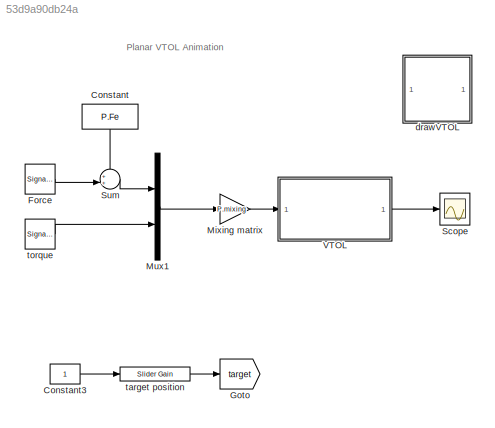
MODEL slx_53d9a90db24a
KIND model
CONFIG AbsTol = auto
CONFIG EnableMultiTasking = on
CONFIG FixedStep = auto
CONFIG InitFcn = addpath ./..\nVTOL_param
CONFIG MaxStep = auto
CONFIG MinStep = auto
CONFIG RelTol = 1e-3
CONFIG SampleTimeConstraint = Unconstrained
CONFIG Solver = ode45
CONFIG SolverName = ode45
CONFIG StartTime = 0.0
CONFIG StopTime = 10000
BLOCK [Constant] Constant
  Value = P.Fe
BLOCK [Constant] Constant3
BLOCK [SignalGenerator] Force
  Amplitude = .1
  Frequency = .1
  Ports = [0, 1]
BLOCK [Goto] Goto
  GotoTag = target
  TagVisibility = global
BLOCK [Gain] Mixing matrix
  Gain = P.mixing
  Multiplication = Matrix(K*u)
  OutDataTypeStr = Inherit: Inherit via internal rule
  ParamDataTypeStr = Inherit: Inherit via internal rule
  SaturateOnIntegerOverflow = off
BLOCK [Mux] Mux1
  DisplayOption = bar
  Inputs = 2
  Ports = [2, 1]
BLOCK [Scope] Scope
  NumInputPorts = 1
  Ports = [1]
  ScopeSpecificationString = Simulink.scopes.TimeScopeBlockCfg('CurrentConfiguration', extmgr.ConfigurationSet(extmgr.Configuration('Core','General UI',true),extmgr.Configuration('Core','Source UI',true),extmgr.Configuration('Sources','WiredSimulink',true),extmgr.Configuration('Visuals','Time Domain',true,'SerializedDisplays',{struct('MinYLimReal','-0.3125','MaxYLimReal','2.8125','YLabelReal','','MinYLimMag','0.00000','MaxYLi...<+1386ch>
BLOCK [Sum] Sum
  IconShape = round
  InputSameDT = off
  Inputs = ++|
  OutDataTypeStr = Inherit: Inherit via internal rule
  Ports = [2, 1]
  SaturateOnIntegerOverflow = off
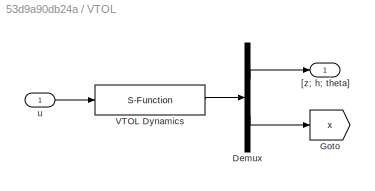
BLOCK [SubSystem] VTOL
  Ports = [1, 1]
  RequestExecContextInheritance = off
  Variant = off
BLOCK [Demux] VTOL/Demux
  DisplayOption = bar
  Outputs = [3;6]
  Ports = [1, 2]
BLOCK [Goto] VTOL/Goto
  GotoTag = x
  TagVisibility = global
BLOCK [S-Function] VTOL/VTOL Dynamics
  EnableBusSupport = off
  FunctionName = VTOL_dynamics
  Parameters = P
  Ports = [1, 1]
  SFcnIsStateOwnerBlock = off
  SFunctionDeploymentMode = off
BLOCK [Outport] VTOL/[z; h; theta]
  IconDisplay = Port number
BLOCK [Inport] VTOL/u
  IconDisplay = Port number
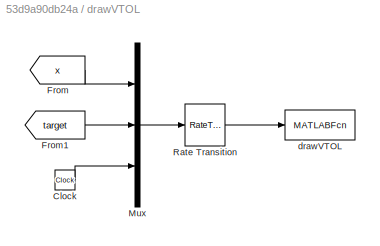
BLOCK [SubSystem] drawVTOL
  Ports = []
  RequestExecContextInheritance = off
  Variant = off
BLOCK [Clock] drawVTOL/Clock
BLOCK [From] drawVTOL/From
  GotoTag = x
  TagVisibility = global
BLOCK [From] drawVTOL/From1
  GotoTag = target
  TagVisibility = global
BLOCK [Mux] drawVTOL/Mux
  DisplayOption = bar
  Inputs = 3
  Ports = [3, 1]
BLOCK [RateTransition] drawVTOL/Rate Transition
  OutPortSampleTime = P.t_plot
BLOCK [MATLABFcn] drawVTOL/drawVTOL
  MATLABFcn = VTOL_animation(u,P)
  OutputDimensions = 0
  Ports = [1]
BLOCK [Reference] target position  REF=simulink/Math
Operations/Slider
Gain
  Ports = [1, 1]
  SourceBlock = simulink/Math\nOperations/Slider\nGain
  SourceType = Slider Gain
BLOCK [SignalGenerator] torque
  Amplitude = .01
  Frequency = 2
  Ports = [0, 1]
ANNOTATION (root): Planar VTOL Animation
LINE Constant3:1 -> target position:1
LINE Constant:1 -> Sum:1
LINE Force:1 -> Sum:2
LINE Mixing matrix:1 -> VTOL:1
LINE Mux1:1 -> Mixing matrix:1
LINE Sum:1 -> Mux1:1
LINE VTOL/Demux:1 -> VTOL/[z; h; theta]:1
LINE VTOL/Demux:2 -> VTOL/Goto:1
LINE VTOL/VTOL Dynamics:1 -> VTOL/Demux:1
LINE VTOL/u:1 -> VTOL/VTOL Dynamics:1
LINE VTOL:1 -> Scope:1
LINE drawVTOL/Clock:1 -> drawVTOL/Mux:3
LINE drawVTOL/From1:1 -> drawVTOL/Mux:2
LINE drawVTOL/From:1 -> drawVTOL/Mux:1
LINE drawVTOL/Mux:1 -> drawVTOL/Rate Transition:1
LINE drawVTOL/Rate Transition:1 -> drawVTOL/drawVTOL:1
LINE target position:1 -> Goto:1
LINE torque:1 -> Mux1:2
